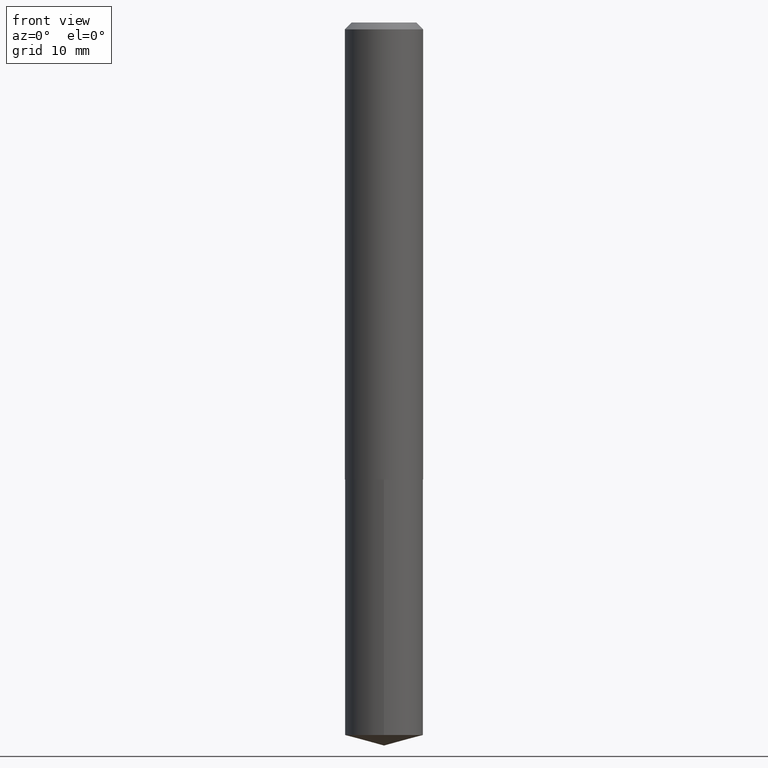
[diagram: clean part render]
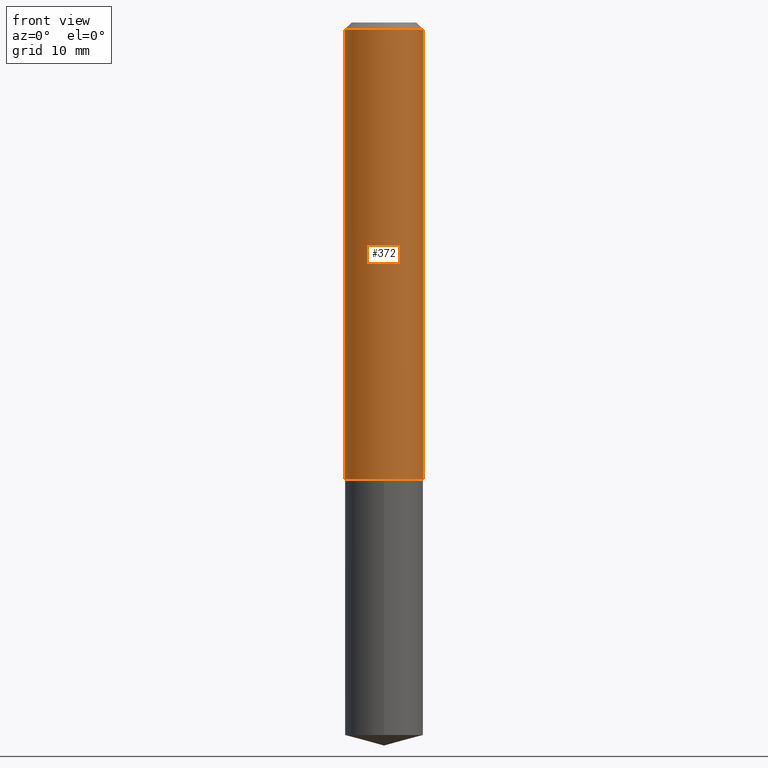
[diagram: same view with one face highlighted and labeled with its STEP entity id]
A machine part, front view. The second image highlights one B-rep face of the part: STEP entity #372.
In plain terms, the highlighted cylindrical surface (partial cylindrical patch) has radius 4.5504 mm, axis along (-0, 0, 1).
Its self-contained STEP definition (entity closure, byte-faithful):
#2 = ORIENTED_EDGE ( 'NONE', *, *, #3, .T. ) ;
#3 = EDGE_CURVE ( 'NONE', #260, #53, #76, .T. ) ;
#6 = CARTESIAN_POINT ( 'NONE',  ( 5.111274351807554765E-29, -7.297545146316060308E-15, -2.090100000000000513 ) ) ;
#11 = CARTESIAN_POINT ( 'NONE',  ( -0.1791500000000000314, -2.430389657963233420E-15, -0.03125000000000018735 ) ) ;
#15 = LINE ( 'NONE', #129, #303 ) ;
#39 = CARTESIAN_POINT ( 'NONE',  ( 0.1791500000000002535, -8.548542910023556308E-15, -2.090100000000000513 ) ) ;
#40 = VERTEX_POINT ( 'NONE', #98 ) ;
#44 = AXIS2_PLACEMENT_3D ( 'NONE', #239, #78, #338 ) ;
#47 = CARTESIAN_POINT ( 'NONE',  ( -0.1791500000000001147, 1.272937311114220298E-15, -8.812272214191669091E-30 ) ) ;
#48 = VECTOR ( 'NONE', #108, 39.37007874015748143 ) ;
#49 = LINE ( 'NONE', #47, #48 ) ;
#53 = VERTEX_POINT ( 'NONE', #39 ) ;
#76 = CIRCLE ( 'NONE', #91, 0.1791500000000002535 ) ;
#78 = DIRECTION ( 'NONE',  ( -2.445468806185136597E-29, 3.491481338843145583E-15, 1.000000000000000000 ) ) ;
#85 = DIRECTION ( 'NONE',  ( 1.000000000000000000, -6.982962677686267499E-15, 4.876176775795936353E-29 ) ) ;
#91 = AXIS2_PLACEMENT_3D ( 'NONE', #6, #211, #229 ) ;
#93 = AXIS2_PLACEMENT_3D ( 'NONE', #285, #115, #85 ) ;
#98 = CARTESIAN_POINT ( 'NONE',  ( 0.1791500000000000314, -1.360106555546343720E-15, -0.03125000000000018735 ) ) ;
#108 = DIRECTION ( 'NONE',  ( -2.445468806185136877E-29, 3.491481338843145188E-15, 1.000000000000000000 ) ) ;
#115 = DIRECTION ( 'NONE',  ( -2.445468806185136597E-29, 3.491481338843145583E-15, 1.000000000000000000 ) ) ;
#129 = CARTESIAN_POINT ( 'NONE',  ( 0.1791500000000001147, -1.250997763707495606E-15, 8.735670693838425178E-30 ) ) ;
#131 = DIRECTION ( 'NONE',  ( -2.445468806185136877E-29, 3.491481338843145188E-15, 1.000000000000000000 ) ) ;
#132 = VERTEX_POINT ( 'NONE', #11 ) ;
#133 = EDGE_LOOP ( 'NONE', ( #188, #2, #305, #175 ) ) ;
#143 = EDGE_CURVE ( 'NONE', #132, #40, #270, .T. ) ;
#165 = CYLINDRICAL_SURFACE ( 'NONE', #93, 0.1791500000000001147 ) ;
#171 = FACE_OUTER_BOUND ( 'NONE', #133, .T. ) ;
#175 = ORIENTED_EDGE ( 'NONE', *, *, #143, .F. ) ;
#188 = ORIENTED_EDGE ( 'NONE', *, *, #193, .F. ) ;
#193 = EDGE_CURVE ( 'NONE', #260, #132, #49, .T. ) ;
#211 = DIRECTION ( 'NONE',  ( -2.445468806185136597E-29, 3.491481338843145583E-15, 1.000000000000000000 ) ) ;
#229 = DIRECTION ( 'NONE',  ( 1.000000000000000000, -6.982962677686262766E-15, 0.000000000000000000 ) ) ;
#239 = CARTESIAN_POINT ( 'NONE',  ( 7.642090019328597407E-31, -1.091087918388489527E-16, -0.03125000000000018735 ) ) ;
#260 = VERTEX_POINT ( 'NONE', #281 ) ;
#270 = CIRCLE ( 'NONE', #44, 0.1791500000000000314 ) ;
#281 = CARTESIAN_POINT ( 'NONE',  ( -0.1791500000000002535, -6.024607835201839024E-15, -2.090100000000000513 ) ) ;
#285 = CARTESIAN_POINT ( 'NONE',  ( 0.000000000000000000, 0.000000000000000000, 0.000000000000000000 ) ) ;
#303 = VECTOR ( 'NONE', #131, 39.37007874015748143 ) ;
#305 = ORIENTED_EDGE ( 'NONE', *, *, #314, .T. ) ;
#314 = EDGE_CURVE ( 'NONE', #53, #40, #15, .T. ) ;
#338 = DIRECTION ( 'NONE',  ( 1.000000000000000000, -6.982962677686267499E-15, 0.000000000000000000 ) ) ;
#372 = ADVANCED_FACE ( 'NONE', ( #171 ), #165, .T. ) ;